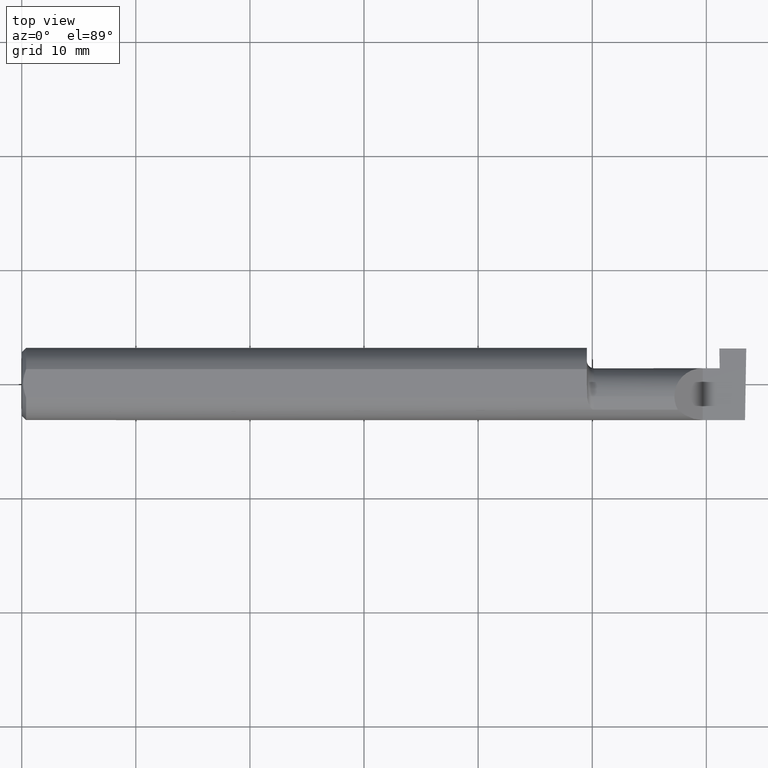
[diagram: clean part render]
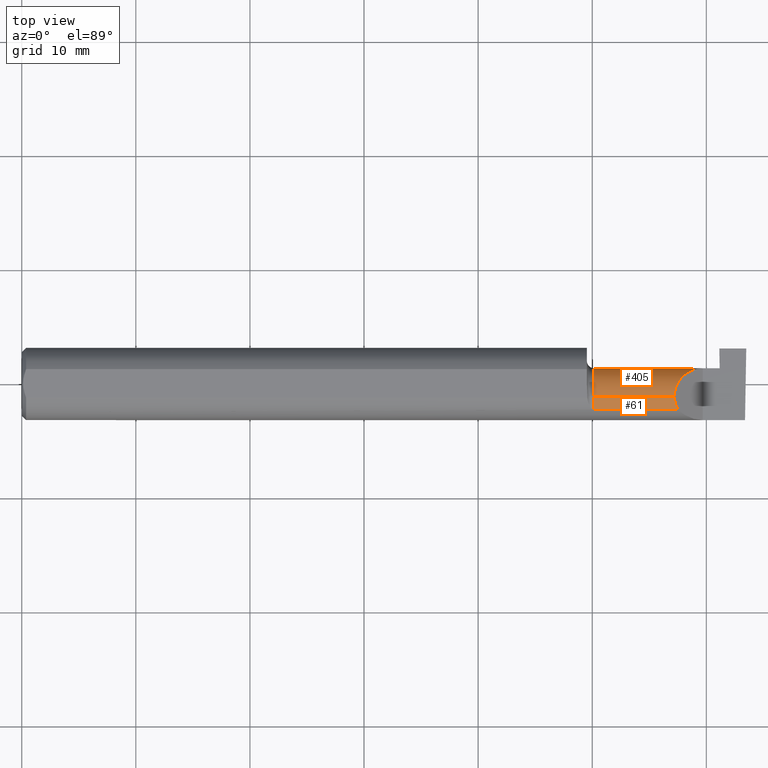
[diagram: same view with one multi-face feature highlighted, each face labeled with its STEP entity id]
A machine part, top view. The highlighted faces form ONE feature: a constant-radius fillet chain: 2 tangent blend faces with common blend radius 2.4892 mm. The faces share edges in the B-rep.
Their STEP definitions:
[1] entity #61 (Cylinder):
#16 = CARTESIAN_POINT ( 'NONE',  ( 1.949999999999999956, -0.04385000000000001397, 0.09800000000000000377 ) ) ;
#17 = VERTEX_POINT ( 'NONE', #83 ) ;
#19 = VECTOR ( 'NONE', #670, 39.37007874015748143 ) ;
#49 = CARTESIAN_POINT ( 'NONE',  ( 1.949999999999999956, -0.04385000000000001397, 0.000000000000000000 ) ) ;
#58 = DIRECTION ( 'NONE',  ( -1.000000000000000000, -0.000000000000000000, -0.000000000000000000 ) ) ;
#61 = ADVANCED_FACE ( 'NONE', ( #174 ), #782, .T. ) ;
#73 = DIRECTION ( 'NONE',  ( -1.000000000000000000, -0.000000000000000000, -0.000000000000000000 ) ) ;
#74 = EDGE_LOOP ( 'NONE', ( #274, #191, #763, #665 ) ) ;
#79 = CARTESIAN_POINT ( 'NONE',  ( 1.974999999999999867, -0.09015216647662482874, 0.08637192471845768493 ) ) ;
#83 = CARTESIAN_POINT ( 'NONE',  ( 1.974999999999999867, -0.04385000000000001397, 0.09800000000000001765 ) ) ;
#91 = CIRCLE ( 'NONE', #608, 0.09800000000000000377 ) ;
#92 = CARTESIAN_POINT ( 'NONE',  ( 2.252000000000000668, -0.06008937020638503712, 0.09799999999999998990 ) ) ;
#106 =( BOUNDED_CURVE ( )  B_SPLINE_CURVE ( 3, ( #220, #590, #92, #148 ),
 .UNSPECIFIED., .F., .T. ) 
 B_SPLINE_CURVE_WITH_KNOTS ( ( 4, 4 ),
 ( 5.791092865617133434, 6.283185307179586232 ),
 .UNSPECIFIED. ) 
 CURVE ( )  GEOMETRIC_REPRESENTATION_ITEM ( )  RATIONAL_B_SPLINE_CURVE ( ( 1.000000000000000000, 0.9799220177372784946, 0.9799220177372784946, 1.000000000000000000 ) ) 
 REPRESENTATION_ITEM ( '' )  );
#119 = VECTOR ( 'NONE', #502, 39.37007874015748143 ) ;
#122 = EDGE_CURVE ( 'NONE', #195, #384, #287, .T. ) ;
#148 = CARTESIAN_POINT ( 'NONE',  ( 2.252000000000000668, -0.04385000000000001397, 0.09800000000000000377 ) ) ;
#174 = FACE_OUTER_BOUND ( 'NONE', #74, .T. ) ;
#176 = CARTESIAN_POINT ( 'NONE',  ( 2.190999999999999837, -0.09015216647662482874, 0.08637192471845768493 ) ) ;
#191 = ORIENTED_EDGE ( 'NONE', *, *, #632, .T. ) ;
#195 = VERTEX_POINT ( 'NONE', #79 ) ;
#220 = CARTESIAN_POINT ( 'NONE',  ( 2.263628075281542529, -0.09015216647662421812, 0.08637192471845822617 ) ) ;
#274 = ORIENTED_EDGE ( 'NONE', *, *, #753, .T. ) ;
#287 = LINE ( 'NONE', #176, #19 ) ;
#367 = VERTEX_POINT ( 'NONE', #772 ) ;
#376 = CARTESIAN_POINT ( 'NONE',  ( 1.974999999999999867, -0.04385000000000001397, 0.000000000000000000 ) ) ;
#384 = VERTEX_POINT ( 'NONE', #472 ) ;
#472 = CARTESIAN_POINT ( 'NONE',  ( 2.263628075281542529, -0.09015216647662421812, 0.08637192471845822617 ) ) ;
#490 = AXIS2_PLACEMENT_3D ( 'NONE', #49, #58, #598 ) ;
#502 = DIRECTION ( 'NONE',  ( -1.000000000000000000, -0.000000000000000000, -0.000000000000000000 ) ) ;
#559 = LINE ( 'NONE', #16, #119 ) ;
#590 = CARTESIAN_POINT ( 'NONE',  ( 2.255955442396118560, -0.07583965973232772995, 0.09404455760388213958 ) ) ;
#598 = DIRECTION ( 'NONE',  ( 0.000000000000000000, 0.000000000000000000, 1.000000000000000000 ) ) ;
#608 = AXIS2_PLACEMENT_3D ( 'NONE', #376, #73, #695 ) ;
#632 = EDGE_CURVE ( 'NONE', #367, #17, #559, .T. ) ;
#661 = EDGE_CURVE ( 'NONE', #195, #17, #91, .T. ) ;
#665 = ORIENTED_EDGE ( 'NONE', *, *, #122, .T. ) ;
#670 = DIRECTION ( 'NONE',  ( 1.000000000000000000, 0.000000000000000000, 0.000000000000000000 ) ) ;
#695 = DIRECTION ( 'NONE',  ( 0.000000000000000000, 0.000000000000000000, 1.000000000000000000 ) ) ;
#753 = EDGE_CURVE ( 'NONE', #384, #367, #106, .T. ) ;
#763 = ORIENTED_EDGE ( 'NONE', *, *, #661, .F. ) ;
#772 = CARTESIAN_POINT ( 'NONE',  ( 2.252000000000000668, -0.04385000000000001397, 0.09800000000000000377 ) ) ;
#782 = CYLINDRICAL_SURFACE ( 'NONE', #490, 0.09800000000000000377 ) ;
[2] entity #405 (Cylinder):
#6 = VERTEX_POINT ( 'NONE', #311 ) ;
#9 = CARTESIAN_POINT ( 'NONE',  ( 2.407982208140546643, 0.05115612325138327310, -0.02403823089877876046 ) ) ;
#16 = CARTESIAN_POINT ( 'NONE',  ( 1.949999999999999956, -0.04385000000000001397, 0.09800000000000000377 ) ) ;
#17 = VERTEX_POINT ( 'NONE', #83 ) ;
#33 = CARTESIAN_POINT ( 'NONE',  ( 1.949999999999999956, -0.04385000000000001397, 0.000000000000000000 ) ) ;
#35 = CARTESIAN_POINT ( 'NONE',  ( 1.974999999999999867, -0.04385000000000001397, 0.000000000000000000 ) ) ;
#45 = VERTEX_POINT ( 'NONE', #734 ) ;
#66 = VERTEX_POINT ( 'NONE', #233 ) ;
#76 = EDGE_CURVE ( 'NONE', #6, #45, #603, .T. ) ;
#83 = CARTESIAN_POINT ( 'NONE',  ( 1.974999999999999867, -0.04385000000000001397, 0.09800000000000001765 ) ) ;
#87 = EDGE_CURVE ( 'NONE', #367, #6, #409, .T. ) ;
#117 = ORIENTED_EDGE ( 'NONE', *, *, #515, .T. ) ;
#119 = VECTOR ( 'NONE', #502, 39.37007874015748143 ) ;
#120 = CARTESIAN_POINT ( 'NONE',  ( 2.410353341463135290, 0.03970102213383044920, -0.06931214282740391641 ) ) ;
#128 = DIRECTION ( 'NONE',  ( 0.000000000000000000, 0.000000000000000000, 1.000000000000000000 ) ) ;
#156 =( BOUNDED_CURVE ( )  B_SPLINE_CURVE ( 3, ( #366, #546, #297, #369 ),
 .UNSPECIFIED., .F., .T. ) 
 B_SPLINE_CURVE_WITH_KNOTS ( ( 4, 4 ),
 ( 4.463962699426426539, 4.711356644242685299 ),
 .UNSPECIFIED. ) 
 CURVE ( )  GEOMETRIC_REPRESENTATION_ITEM ( )  RATIONAL_B_SPLINE_CURVE ( ( 1.000000000000000000, 0.9949061863229001768, 0.9949061863229001768, 1.000000000000000000 ) ) 
 REPRESENTATION_ITEM ( '' )  );
#170 = VECTOR ( 'NONE', #601, 39.37007874015748143 ) ;
#181 = CARTESIAN_POINT ( 'NONE',  ( 2.252000000000000668, -0.04385000000000001397, 0.09800000000000000377 ) ) ;
#198 = ORIENTED_EDGE ( 'NONE', *, *, #471, .F. ) ;
#200 = CARTESIAN_POINT ( 'NONE',  ( 2.411853376795601189, -0.04385000000000004172, -0.09799999999999998990 ) ) ;
#222 = ORIENTED_EDGE ( 'NONE', *, *, #547, .T. ) ;
#233 = CARTESIAN_POINT ( 'NONE',  ( 2.407982208140546643, 0.05115612325138327310, -0.02403823089877876046 ) ) ;
#237 = CARTESIAN_POINT ( 'NONE',  ( 2.407000000000000028, 0.05414999123725527941, -4.144270477499288293E-05 ) ) ;
#244 = LINE ( 'NONE', #537, #170 ) ;
#262 = CARTESIAN_POINT ( 'NONE',  ( 1.974999999999999867, -0.04385000000000000009, -0.09800000000000001765 ) ) ;
#273 = DIRECTION ( 'NONE',  ( -1.000000000000000000, -0.000000000000000000, -0.000000000000000000 ) ) ;
#292 = DIRECTION ( 'NONE',  ( 1.000000000000000000, 0.000000000000000000, 0.000000000000000000 ) ) ;
#297 = CARTESIAN_POINT ( 'NONE',  ( 2.407331655309489893, 0.05414656493488110428, -0.008143655253979588740 ) ) ;
#305 = CARTESIAN_POINT ( 'NONE',  ( 2.411853376795601189, -0.04385000000000004172, -0.09799999999999998990 ) ) ;
#311 = CARTESIAN_POINT ( 'NONE',  ( 2.350000000000000089, 0.05414999999999988572, 1.836970198721028825E-17 ) ) ;
#333 = CIRCLE ( 'NONE', #626, 0.09800000000000000377 ) ;
#348 = CARTESIAN_POINT ( 'NONE',  ( 1.949999999999999956, 0.05414999999999998981, 6.735557395310438818E-17 ) ) ;
#355 = CARTESIAN_POINT ( 'NONE',  ( 2.407000000000000028, -0.04385000000000001397, 0.000000000000000000 ) ) ;
#362 = AXIS2_PLACEMENT_3D ( 'NONE', #33, #273, #522 ) ;
#366 = CARTESIAN_POINT ( 'NONE',  ( 2.407982208140546643, 0.05115612325138327310, -0.02403823089877876046 ) ) ;
#367 = VERTEX_POINT ( 'NONE', #772 ) ;
#369 = CARTESIAN_POINT ( 'NONE',  ( 2.407000000000000028, 0.05414999123725527941, -4.144270477499288293E-05 ) ) ;
#405 = ADVANCED_FACE ( 'NONE', ( #419 ), #580, .T. ) ;
#409 =( BOUNDED_CURVE ( )  B_SPLINE_CURVE ( 3, ( #181, #666, #716, #617 ),
 .UNSPECIFIED., .F., .T. ) 
 B_SPLINE_CURVE_WITH_KNOTS ( ( 4, 4 ),
 ( 0.000000000000000000, 1.570796326794896558 ),
 .UNSPECIFIED. ) 
 CURVE ( )  GEOMETRIC_REPRESENTATION_ITEM ( )  RATIONAL_B_SPLINE_CURVE ( ( 1.000000000000000000, 0.8047378541243649375, 0.8047378541243649375, 1.000000000000000000 ) ) 
 REPRESENTATION_ITEM ( '' )  );
#419 = FACE_OUTER_BOUND ( 'NONE', #524, .T. ) ;
#436 = DIRECTION ( 'NONE',  ( -1.000000000000000000, -0.000000000000000000, -0.000000000000000000 ) ) ;
#449 = VERTEX_POINT ( 'NONE', #237 ) ;
#471 = EDGE_CURVE ( 'NONE', #733, #66, #494, .T. ) ;
#493 = EDGE_CURVE ( 'NONE', #66, #449, #156, .T. ) ;
#494 =( BOUNDED_CURVE ( )  B_SPLINE_CURVE ( 3, ( #305, #553, #120, #9 ),
 .UNSPECIFIED., .F., .T. ) 
 B_SPLINE_CURVE_WITH_KNOTS ( ( 4, 4 ),
 ( 3.140983202202990654, 4.463962699426422986 ),
 .UNSPECIFIED. ) 
 CURVE ( )  GEOMETRIC_REPRESENTATION_ITEM ( )  RATIONAL_B_SPLINE_CURVE ( ( 1.000000000000000000, 0.8593853101475601441, 0.8593853101475601441, 1.000000000000000000 ) ) 
 REPRESENTATION_ITEM ( '' )  );
#502 = DIRECTION ( 'NONE',  ( -1.000000000000000000, -0.000000000000000000, -0.000000000000000000 ) ) ;
#515 = EDGE_CURVE ( 'NONE', #45, #449, #746, .T. ) ;
#522 = DIRECTION ( 'NONE',  ( 0.000000000000000000, 0.000000000000000000, 1.000000000000000000 ) ) ;
#524 = EDGE_LOOP ( 'NONE', ( #198, #222, #711, #609, #687, #585, #117, #630 ) ) ;
#525 = DIRECTION ( 'NONE',  ( 0.000000000000000000, 0.000000000000000000, 1.000000000000000000 ) ) ;
#536 = VECTOR ( 'NONE', #292, 39.37007874015748143 ) ;
#537 = CARTESIAN_POINT ( 'NONE',  ( 1.949999999999999956, -0.04385000000000000703, -0.09800000000000000377 ) ) ;
#546 = CARTESIAN_POINT ( 'NONE',  ( 2.407660734290017590, 0.05314349951121612181, -0.01618353831829614717 ) ) ;
#547 = EDGE_CURVE ( 'NONE', #733, #619, #244, .T. ) ;
#553 = CARTESIAN_POINT ( 'NONE',  ( 2.411854867654528167, 0.002850604310161335923, -0.09800000000000001765 ) ) ;
#559 = LINE ( 'NONE', #16, #119 ) ;
#580 = CYLINDRICAL_SURFACE ( 'NONE', #362, 0.09800000000000000377 ) ;
#585 = ORIENTED_EDGE ( 'NONE', *, *, #76, .T. ) ;
#601 = DIRECTION ( 'NONE',  ( -1.000000000000000000, -0.000000000000000000, -0.000000000000000000 ) ) ;
#603 = LINE ( 'NONE', #348, #536 ) ;
#609 = ORIENTED_EDGE ( 'NONE', *, *, #632, .F. ) ;
#617 = CARTESIAN_POINT ( 'NONE',  ( 2.350000000000000089, 0.05414999999999988572, 1.836970198721028825E-17 ) ) ;
#619 = VERTEX_POINT ( 'NONE', #262 ) ;
#626 = AXIS2_PLACEMENT_3D ( 'NONE', #35, #712, #525 ) ;
#630 = ORIENTED_EDGE ( 'NONE', *, *, #493, .F. ) ;
#632 = EDGE_CURVE ( 'NONE', #367, #17, #559, .T. ) ;
#647 = AXIS2_PLACEMENT_3D ( 'NONE', #355, #436, #128 ) ;
#666 = CARTESIAN_POINT ( 'NONE',  ( 2.252000000000000668, 0.01355707088743670317, 0.09799999999999996214 ) ) ;
#687 = ORIENTED_EDGE ( 'NONE', *, *, #87, .T. ) ;
#711 = ORIENTED_EDGE ( 'NONE', *, *, #742, .F. ) ;
#712 = DIRECTION ( 'NONE',  ( -1.000000000000000000, -0.000000000000000000, -0.000000000000000000 ) ) ;
#716 = CARTESIAN_POINT ( 'NONE',  ( 2.292592929112563738, 0.05415000000000004532, 0.05740707088743669112 ) ) ;
#733 = VERTEX_POINT ( 'NONE', #200 ) ;
#734 = CARTESIAN_POINT ( 'NONE',  ( 2.407000000000000028, 0.05414999999999994817, 6.735575921201429717E-17 ) ) ;
#742 = EDGE_CURVE ( 'NONE', #17, #619, #333, .T. ) ;
#746 = CIRCLE ( 'NONE', #647, 0.09800000000000000377 ) ;
#772 = CARTESIAN_POINT ( 'NONE',  ( 2.252000000000000668, -0.04385000000000001397, 0.09800000000000000377 ) ) ;